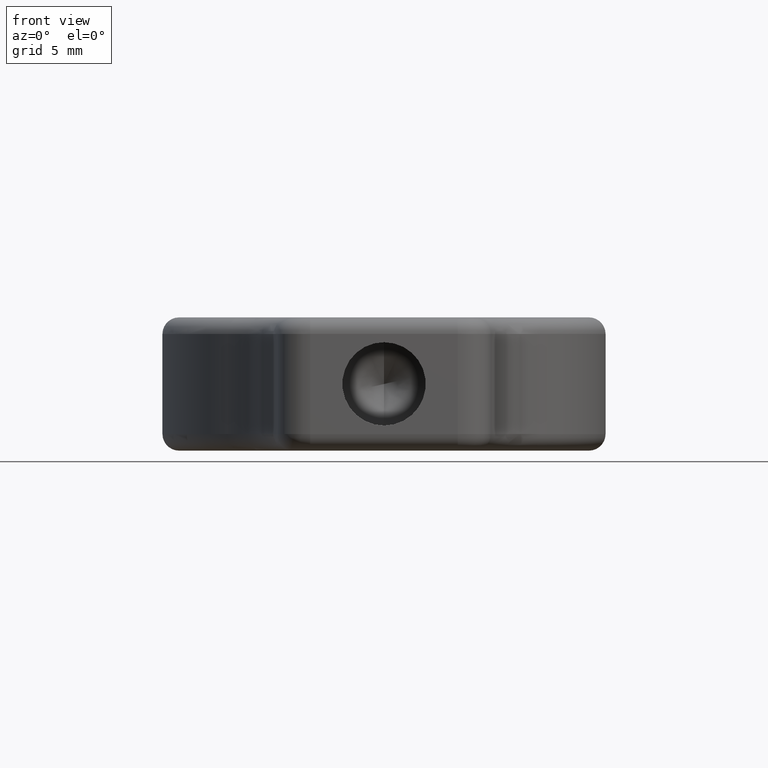
[diagram: clean part render]
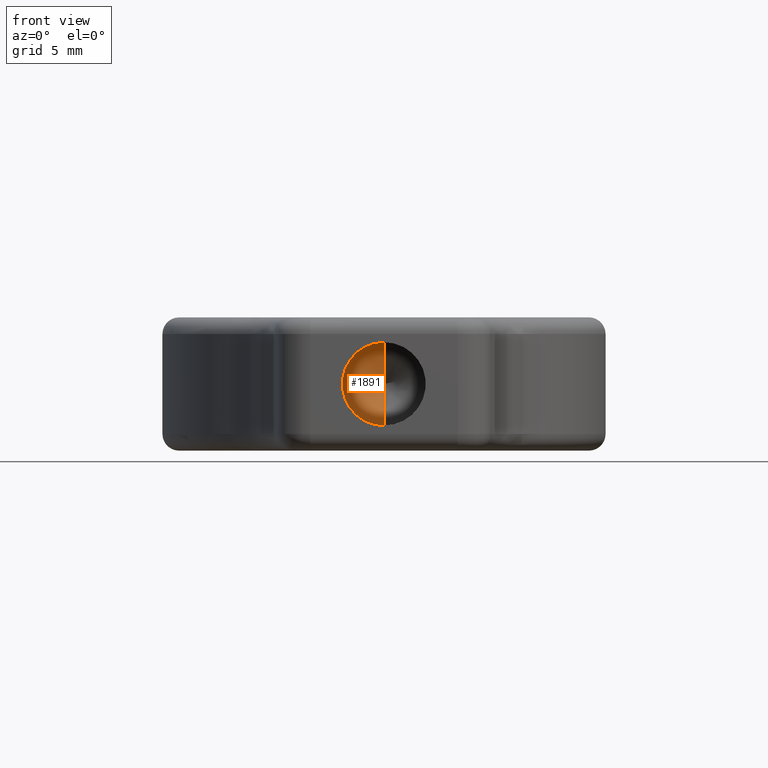
[diagram: same view with one face highlighted and labeled with its STEP entity id]
A machine part, front view. The second image highlights one B-rep face of the part: STEP entity #1891.
In plain terms, the highlighted conical surface has half-angle 59 deg.
Its self-contained STEP definition (entity closure, byte-faithful):
#137 = CARTESIAN_POINT ( 'NONE',  ( 2.223772548633339500, -10.76662820204621500, 36.50000000000000700 ) ) ;
#156 = CARTESIAN_POINT ( 'NONE',  ( 2.223772548633339100, -10.76662820204621500, 34.00000000000000000 ) ) ;
#276 = CARTESIAN_POINT ( 'NONE',  ( 2.223772548633339500, -10.76662820204621500, 36.50000000000000700 ) ) ;
#309 = EDGE_CURVE ( 'NONE', #1200, #1631, #1578, .T. ) ;
#319 = EDGE_LOOP ( 'NONE', ( #2226, #1457, #2233 ) ) ;
#347 = DIRECTION ( 'NONE',  ( 0.0000000000000000000, 0.0000000000000000000, -1.000000000000000000 ) ) ;
#516 = DIRECTION ( 'NONE',  ( -0.0000000000000000000, -1.000000000000000000, -0.0000000000000000000 ) ) ;
#535 = CARTESIAN_POINT ( 'NONE',  ( 2.223772548633339100, -10.76662820204621500, 31.50000000000000000 ) ) ;
#735 = EDGE_CURVE ( 'NONE', #1631, #975, #832, .T. ) ;
#832 = CIRCLE ( 'NONE', #1504, 2.500000000000002200 ) ;
#860 = DIRECTION ( 'NONE',  ( 1.049727191138618100E-016, -0.5150380749100549300, 0.8571673007021118900 ) ) ;
#867 = FACE_OUTER_BOUND ( 'NONE', #319, .T. ) ;
#963 = CARTESIAN_POINT ( 'NONE',  ( 2.223772548633339100, -10.76662820204621500, 31.50000000000000000 ) ) ;
#975 = VERTEX_POINT ( 'NONE', #535 ) ;
#989 = CARTESIAN_POINT ( 'NONE',  ( 2.223772548633337300, -9.264476654477313400, 34.00000000000000000 ) ) ;
#995 = LINE ( 'NONE', #963, #2236 ) ;
#1091 = VECTOR ( 'NONE', #860, 1000.000000000000000 ) ;
#1200 = VERTEX_POINT ( 'NONE', #989 ) ;
#1337 = DIRECTION ( 'NONE',  ( 0.0000000000000000000, 0.0000000000000000000, -1.000000000000000000 ) ) ;
#1354 = DIRECTION ( 'NONE',  ( -0.0000000000000000000, -1.000000000000000000, -0.0000000000000000000 ) ) ;
#1457 = ORIENTED_EDGE ( 'NONE', *, *, #309, .T. ) ;
#1504 = AXIS2_PLACEMENT_3D ( 'NONE', #1538, #1354, #1337 ) ;
#1538 = CARTESIAN_POINT ( 'NONE',  ( 2.223772548633339100, -10.76662820204621500, 34.00000000000000000 ) ) ;
#1567 = EDGE_CURVE ( 'NONE', #1200, #975, #995, .T. ) ;
#1578 = LINE ( 'NONE', #137, #1091 ) ;
#1617 = CONICAL_SURFACE ( 'NONE', #1967, 2.500000000000002200, 1.029744258676653600 ) ;
#1631 = VERTEX_POINT ( 'NONE', #276 ) ;
#1836 = DIRECTION ( 'NONE',  ( 0.0000000000000000000, -0.5150380749100549300, -0.8571673007021118900 ) ) ;
#1891 = ADVANCED_FACE ( 'NONE', ( #867 ), #1617, .F. ) ;
#1967 = AXIS2_PLACEMENT_3D ( 'NONE', #156, #516, #347 ) ;
#2226 = ORIENTED_EDGE ( 'NONE', *, *, #1567, .F. ) ;
#2233 = ORIENTED_EDGE ( 'NONE', *, *, #735, .T. ) ;
#2236 = VECTOR ( 'NONE', #1836, 1000.000000000000000 ) ;